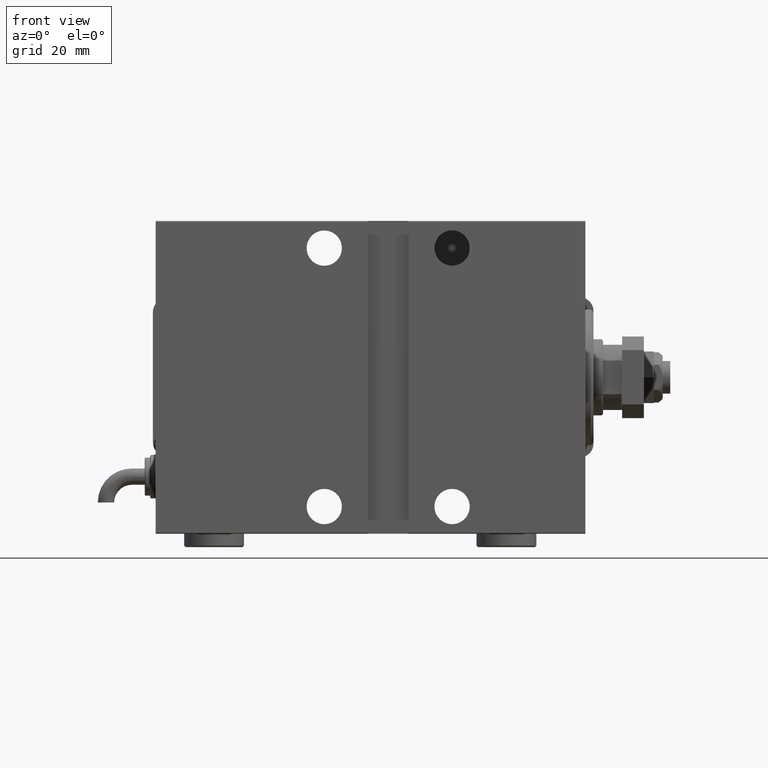
[diagram: clean part render]
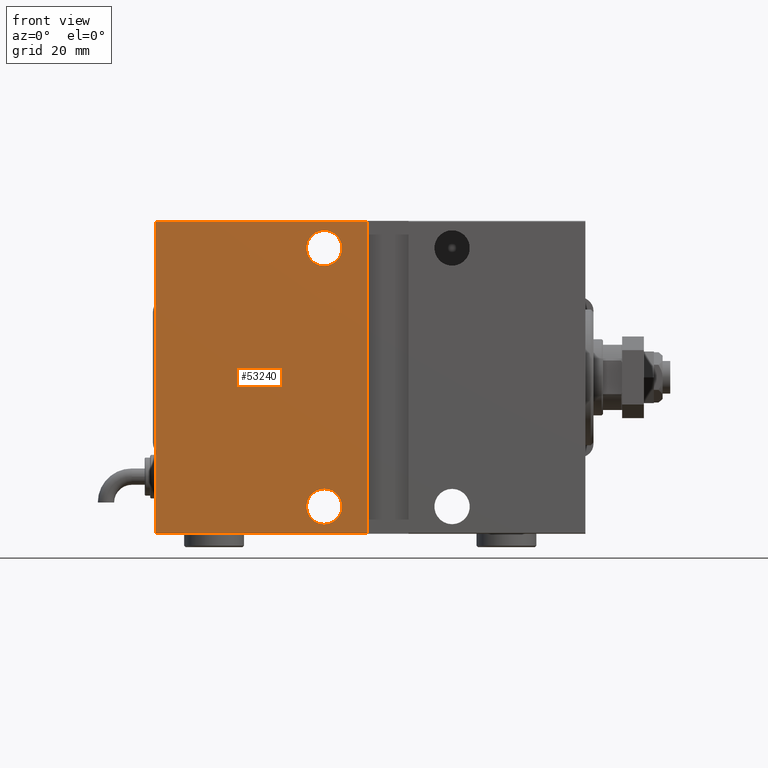
[diagram: same view with one face highlighted and labeled with its STEP entity id]
A machine part, front view. The second image highlights one B-rep face of the part: STEP entity #53240.
In plain terms, the highlighted planar face has unit normal (-0, 1, 0).
Its self-contained STEP definition (entity closure, byte-faithful):
#461 = CARTESIAN_POINT ( 'NONE',  ( 80.00000000000000000, 45.00000000000000000, 57.20000000000004547 ) ) ;
#2174 = CARTESIAN_POINT ( 'NONE',  ( 80.00000000000000000, 45.00000000000000000, 57.50000000000000711 ) ) ;
#2542 = DIRECTION ( 'NONE',  ( 0.000000000000000000, 1.000000000000000000, 0.000000000000000000 ) ) ;
#2858 = VECTOR ( 'NONE', #34125, 1000.000000000000000 ) ;
#3304 = AXIS2_PLACEMENT_3D ( 'NONE', #55849, #2542, #38997 ) ;
#6906 = VERTEX_POINT ( 'NONE', #7248 ) ;
#7217 = DIRECTION ( 'NONE',  ( -1.000000000000000000, 0.000000000000000000, 0.000000000000000000 ) ) ;
#7248 = CARTESIAN_POINT ( 'NONE',  ( 158.0000000000000000, 45.00000000000000000, 57.20000000000001705 ) ) ;
#8059 = CARTESIAN_POINT ( 'NONE',  ( 158.0000000000000000, 45.00000000000000000, -57.20000000000001705 ) ) ;
#8116 = CIRCLE ( 'NONE', #3304, 6.500000000000005329 ) ;
#10241 = ORIENTED_EDGE ( 'NONE', *, *, #19702, .F. ) ;
#10300 = ORIENTED_EDGE ( 'NONE', *, *, #35889, .F. ) ;
#10484 = DIRECTION ( 'NONE',  ( 0.000000000000000000, 0.000000000000000000, 1.000000000000000000 ) ) ;
#11815 = LINE ( 'NONE', #2174, #2858 ) ;
#12552 = EDGE_CURVE ( 'NONE', #55175, #45429, #56085, .T. ) ;
#13897 = ORIENTED_EDGE ( 'NONE', *, *, #51813, .T. ) ;
#14108 = FACE_BOUND ( 'NONE', #38816, .T. ) ;
#14637 = CARTESIAN_POINT ( 'NONE',  ( 95.99999999999998579, 45.00000000000003553, -40.99999999999999289 ) ) ;
#14713 = CARTESIAN_POINT ( 'NONE',  ( 95.99999999999998579, 45.00000000000003553, -47.50000000000000000 ) ) ;
#14770 = AXIS2_PLACEMENT_3D ( 'NONE', #56830, #24648, #10484 ) ;
#19421 = LINE ( 'NONE', #37776, #31491 ) ;
#19446 = CARTESIAN_POINT ( 'NONE',  ( 158.0000000000000000, 45.00000000000000000, -57.50000000000000711 ) ) ;
#19702 = EDGE_CURVE ( 'NONE', #49144, #6906, #51348, .T. ) ;
#21099 = DIRECTION ( 'NONE',  ( 0.000000000000000000, 0.000000000000000000, 1.000000000000000000 ) ) ;
#21274 = EDGE_CURVE ( 'NONE', #49144, #41897, #25916, .T. ) ;
#21435 = AXIS2_PLACEMENT_3D ( 'NONE', #31642, #34940, #21099 ) ;
#21748 = VERTEX_POINT ( 'NONE', #14637 ) ;
#22745 = ORIENTED_EDGE ( 'NONE', *, *, #35828, .F. ) ;
#24648 = DIRECTION ( 'NONE',  ( 0.000000000000000000, 1.000000000000000000, 0.000000000000000000 ) ) ;
#25352 = CARTESIAN_POINT ( 'NONE',  ( 95.99999999999998579, 45.00000000000003553, 40.99999999999999289 ) ) ;
#25916 = LINE ( 'NONE', #39458, #33390 ) ;
#27348 = CARTESIAN_POINT ( 'NONE',  ( 95.99999999999998579, 45.00000000000003553, -54.00000000000000711 ) ) ;
#31491 = VECTOR ( 'NONE', #56112, 1000.000000000000000 ) ;
#31642 = CARTESIAN_POINT ( 'NONE',  ( 95.99999999999998579, 45.00000000000003553, 47.50000000000000000 ) ) ;
#32020 = CIRCLE ( 'NONE', #21435, 6.500000000000005329 ) ;
#32233 = DIRECTION ( 'NONE',  ( 0.000000000000000000, 1.000000000000000000, 0.000000000000000000 ) ) ;
#32500 = PLANE ( 'NONE',  #35382 ) ;
#33390 = VECTOR ( 'NONE', #7217, 1000.000000000000000 ) ;
#34125 = DIRECTION ( 'NONE',  ( -1.206764157201257045E-16, 0.000000000000000000, -1.000000000000000000 ) ) ;
#34940 = DIRECTION ( 'NONE',  ( 0.000000000000000000, 1.000000000000000000, 0.000000000000000000 ) ) ;
#35382 = AXIS2_PLACEMENT_3D ( 'NONE', #42394, #50837, #41514 ) ;
#35828 = EDGE_CURVE ( 'NONE', #45429, #55175, #32020, .T. ) ;
#35889 = EDGE_CURVE ( 'NONE', #21748, #54629, #52127, .T. ) ;
#37776 = CARTESIAN_POINT ( 'NONE',  ( 158.0000000000000000, 45.00000000000000000, 57.20000000000004547 ) ) ;
#37801 = DIRECTION ( 'NONE',  ( 0.000000000000000000, 0.000000000000000000, 1.000000000000000000 ) ) ;
#38816 = EDGE_LOOP ( 'NONE', ( #10300, #46394 ) ) ;
#38997 = DIRECTION ( 'NONE',  ( 0.000000000000000000, 0.000000000000000000, 1.000000000000000000 ) ) ;
#39458 = CARTESIAN_POINT ( 'NONE',  ( 158.0000000000000000, 45.00000000000000000, -57.20000000000001705 ) ) ;
#40309 = EDGE_CURVE ( 'NONE', #54629, #21748, #8116, .T. ) ;
#40650 = AXIS2_PLACEMENT_3D ( 'NONE', #14713, #32233, #55650 ) ;
#41514 = DIRECTION ( 'NONE',  ( 0.000000000000000000, -0.000000000000000000, -1.000000000000000000 ) ) ;
#41897 = VERTEX_POINT ( 'NONE', #55832 ) ;
#42108 = FACE_OUTER_BOUND ( 'NONE', #47332, .T. ) ;
#42394 = CARTESIAN_POINT ( 'NONE',  ( 158.0000000000000000, 45.00000000000000000, -57.50000000000000711 ) ) ;
#45429 = VERTEX_POINT ( 'NONE', #25352 ) ;
#46394 = ORIENTED_EDGE ( 'NONE', *, *, #40309, .F. ) ;
#47305 = CARTESIAN_POINT ( 'NONE',  ( 95.99999999999998579, 45.00000000000003553, 54.00000000000000711 ) ) ;
#47332 = EDGE_LOOP ( 'NONE', ( #10241, #51721, #51945, #13897 ) ) ;
#48930 = ORIENTED_EDGE ( 'NONE', *, *, #12552, .F. ) ;
#49144 = VERTEX_POINT ( 'NONE', #8059 ) ;
#49673 = VECTOR ( 'NONE', #37801, 1000.000000000000000 ) ;
#50837 = DIRECTION ( 'NONE',  ( 0.000000000000000000, -1.000000000000000000, 0.000000000000000000 ) ) ;
#51348 = LINE ( 'NONE', #19446, #49673 ) ;
#51721 = ORIENTED_EDGE ( 'NONE', *, *, #21274, .T. ) ;
#51813 = EDGE_CURVE ( 'NONE', #56741, #6906, #19421, .T. ) ;
#51945 = ORIENTED_EDGE ( 'NONE', *, *, #59182, .F. ) ;
#52127 = CIRCLE ( 'NONE', #40650, 6.500000000000005329 ) ;
#53240 = ADVANCED_FACE ( 'NONE', ( #14108, #55903, #42108 ), #32500, .F. ) ;
#54629 = VERTEX_POINT ( 'NONE', #27348 ) ;
#55175 = VERTEX_POINT ( 'NONE', #47305 ) ;
#55650 = DIRECTION ( 'NONE',  ( 0.000000000000000000, 0.000000000000000000, 1.000000000000000000 ) ) ;
#55832 = CARTESIAN_POINT ( 'NONE',  ( 79.99999999999998579, 45.00000000000000000, -57.19999999999998863 ) ) ;
#55849 = CARTESIAN_POINT ( 'NONE',  ( 95.99999999999998579, 45.00000000000003553, -47.50000000000000000 ) ) ;
#55903 = FACE_BOUND ( 'NONE', #58601, .T. ) ;
#56085 = CIRCLE ( 'NONE', #14770, 6.500000000000005329 ) ;
#56112 = DIRECTION ( 'NONE',  ( 1.000000000000000000, 0.000000000000000000, 0.000000000000000000 ) ) ;
#56741 = VERTEX_POINT ( 'NONE', #461 ) ;
#56830 = CARTESIAN_POINT ( 'NONE',  ( 95.99999999999998579, 45.00000000000003553, 47.50000000000000000 ) ) ;
#58601 = EDGE_LOOP ( 'NONE', ( #48930, #22745 ) ) ;
#59182 = EDGE_CURVE ( 'NONE', #56741, #41897, #11815, .T. ) ;